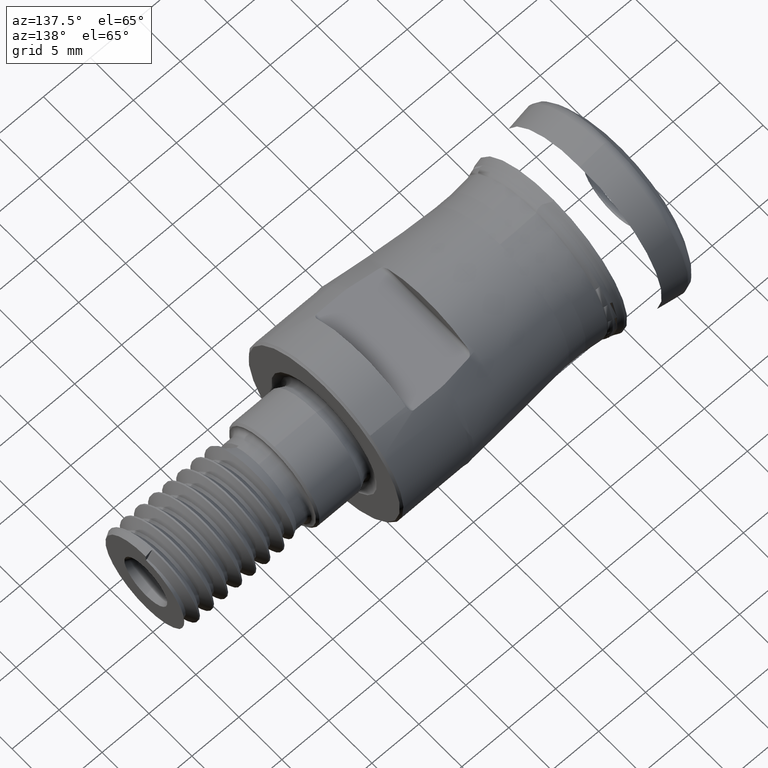
[diagram: clean part render]
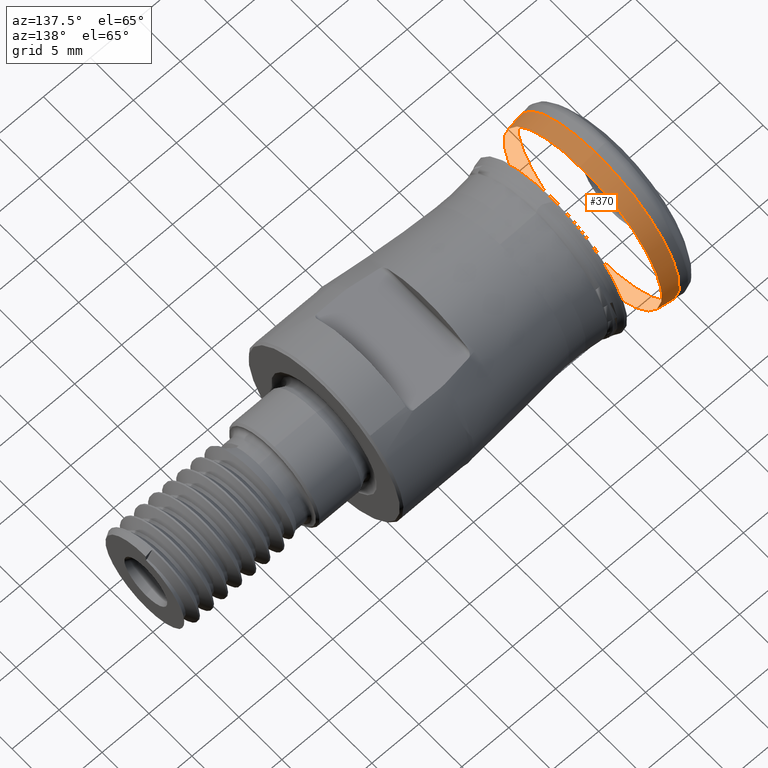
[diagram: same view with one face highlighted and labeled with its STEP entity id]
A machine part, auxiliary view. The second image highlights one B-rep face of the part: STEP entity #370.
In plain terms, the highlighted face is a SurfaceOfRevolution surface.
Its self-contained STEP definition (entity closure, byte-faithful):
#111=SURFACE_OF_REVOLUTION('',#217,#144);
#144=AXIS1_PLACEMENT('',#3609,#1406);
#217=LINE('',#3608,#240);
#240=VECTOR('',#1405,1.66703794823506);
#370=ADVANCED_FACE('',(#461,#462),#111,.T.);
#461=FACE_BOUND('',#586,.T.);
#462=FACE_BOUND('',#587,.T.);
#586=EDGE_LOOP('',(#808));
#587=EDGE_LOOP('',(#809));
#808=ORIENTED_EDGE('',*,*,#1038,.F.);
#809=ORIENTED_EDGE('',*,*,#1039,.T.);
#927=VERTEX_POINT('',#3600);
#928=VERTEX_POINT('',#3607);
#1038=EDGE_CURVE('',#927,#927,#1102,.T.);
#1039=EDGE_CURVE('',#928,#928,#1103,.T.);
#1102=CIRCLE('',#1201,9.16823194709451);
#1103=CIRCLE('',#1202,9.42183290075121);
#1201=AXIS2_PLACEMENT_3D('',#3599,#1400,#1401);
#1202=AXIS2_PLACEMENT_3D('',#3606,#1403,#1404);
#1400=DIRECTION('',(1.,0.,0.));
#1401=DIRECTION('',(0.,0.,-1.));
#1403=DIRECTION('',(1.,0.,0.));
#1404=DIRECTION('',(0.,0.,-1.));
#1405=DIRECTION('',(0.987982005992402,0.15359507895885,-0.0173236126386517));
#1406=DIRECTION('',(1.,0.,0.));
#3599=CARTESIAN_POINT('',(4.18379442994293,0.,0.));
#3600=CARTESIAN_POINT('',(4.18379442994293,0.,-9.16823194709451));
#3606=CARTESIAN_POINT('',(2.5367909337802,0.,0.));
#3607=CARTESIAN_POINT('',(2.5367909337802,0.,-9.42183290075121));
#3608=CARTESIAN_POINT('',(2.5367909337802,-9.03411499100059,2.67501430632742));
#3609=CARTESIAN_POINT('',(0.,0.,0.));